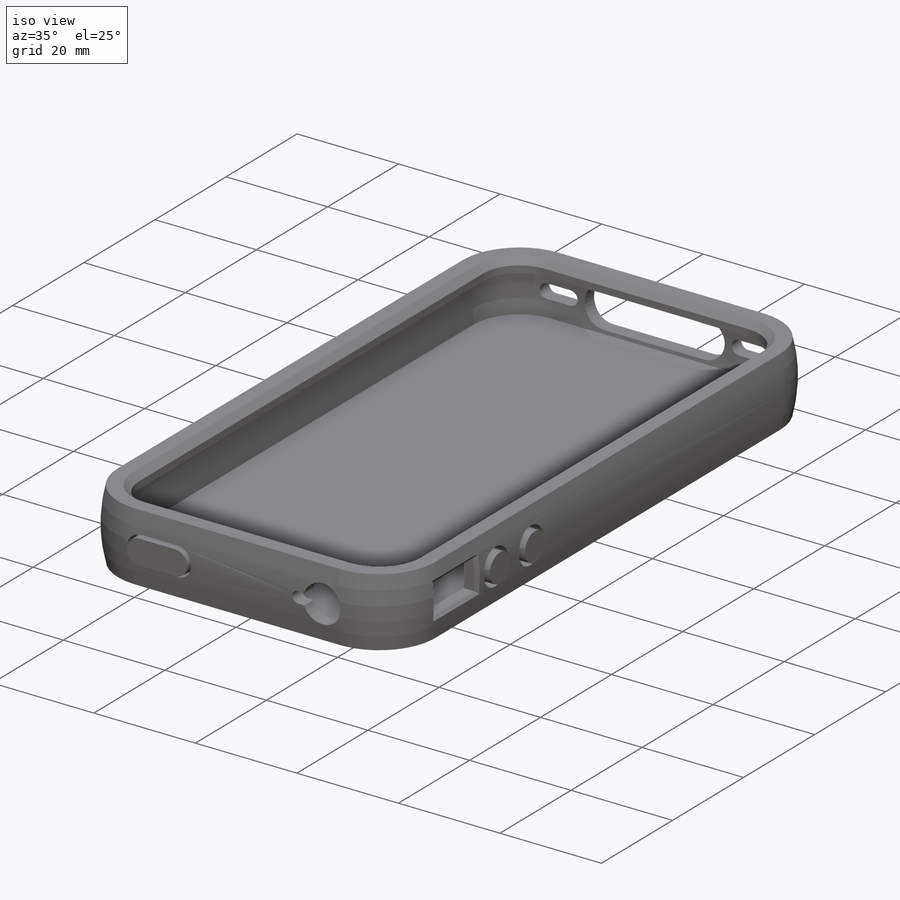
[diagram: iso view]
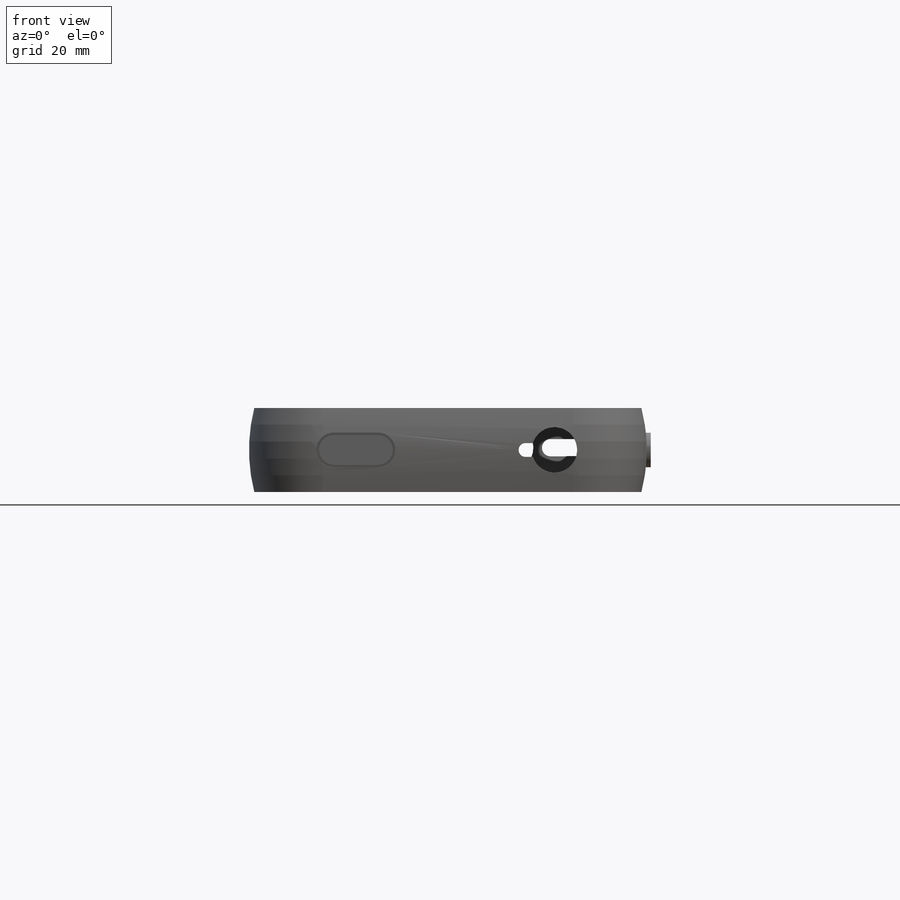
[diagram: front view]
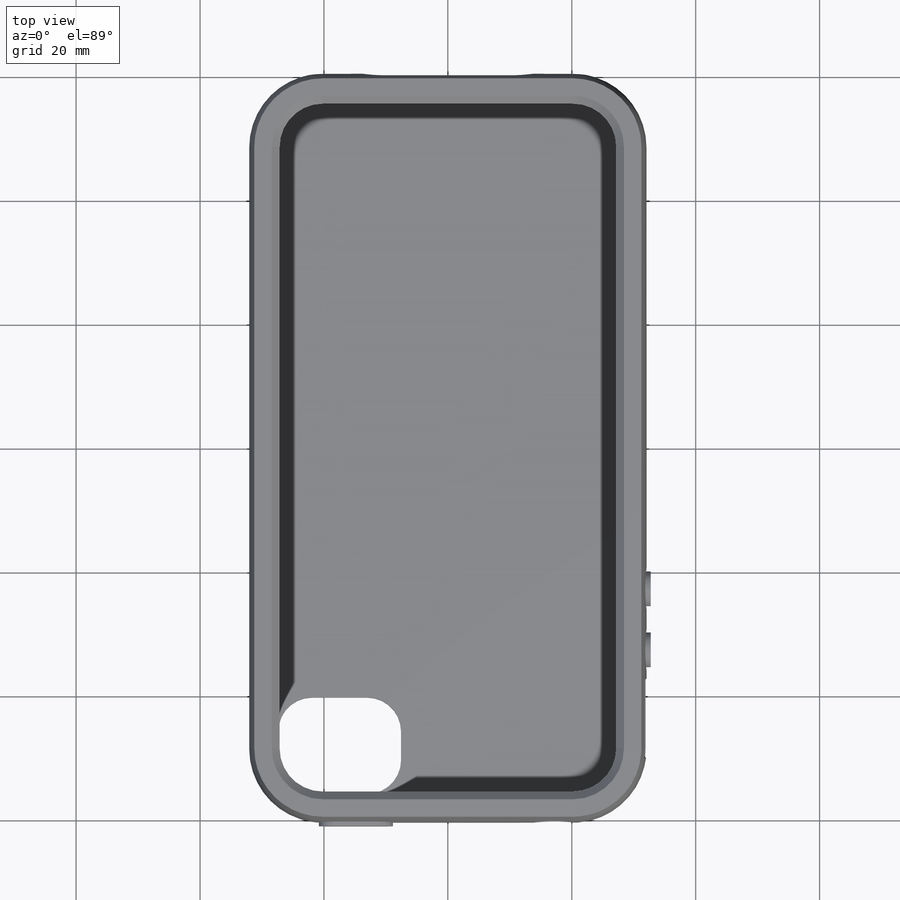
[diagram: top view]
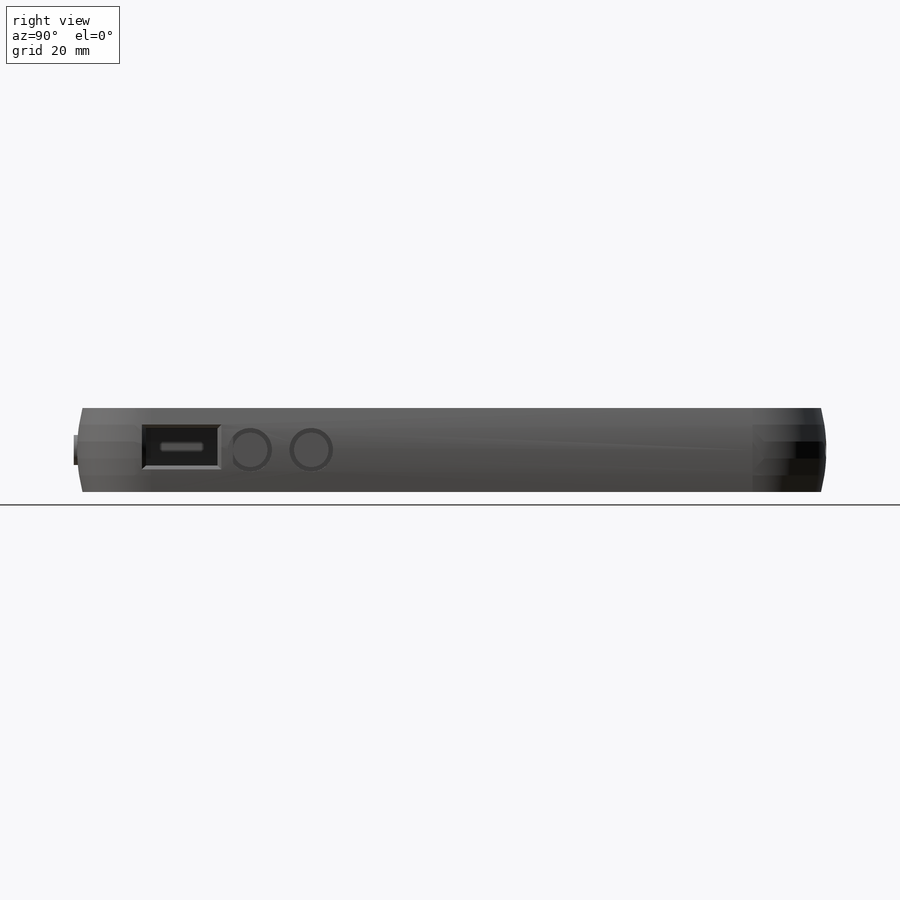
[diagram: right view]
SOLIDWORKS PART (.sldprt)
format: sldprt  version: not decoded by parser v0  size: 608,256 bytes
history: native  units: mm
features: sketch x15, cut_extrude x8, extrude x5, plane x5, chamfer x2, material x1, sweep x1, shell x1 (+12 scaffold rows collapsed)
feature tree (50):
  scaffold x12  (default folders/planes/origin — collapsed)
  material  "Material <not specified>"
  sketch  "Sketch2"  dims[D3=~11.90625mm D1=64.1858mm D2=120.904mm D4=5.0546mm]
  sketch  "Sketch3"  dims[c1.D2=~27.350303mm c1.D1=13.5382mm c2.D2=31.242mm c2.D3=6.7691mm c2.D4=~9.257136mm]
  sweep  "Sweep3"
  sketch  "Sketch4"
  extrude  "Boss-Extrude1"  [1 undecoded]
  shell  "Shell1"  Thickness=2.6416mm
  sketch  "Sketch5"  dims[D1=0.0mm D2=4.0894mm]
  cut_extrude  "Cut-Extrude1"  Depth=5.08mm
  chamfer  "Chamfer1"  Distance=1.27mm Angle=45deg
  sketch  "Sketch6"  dims[D5=5.461mm D1=4.7244mm D2=4.7244mm D3=19.812mm D4=15.5702mm]
  cut_extrude  "Cut-Extrude2"  [1 undecoded]
  sketch  "Sketch7"  dims[D1=11.0998mm D2=3.2766mm D3=4.2672mm D4=11.5316mm]
  cut_extrude  "Cut-Extrude3"  [1 undecoded]
  chamfer  "Chamfer2"  Distance=0.635mm Angle=45deg
  plane  "Plane1"
  sketch  "Sketch8"  dims[D3=7.0612mm D1=83.1342mm D2=9.8552mm]
  cut_extrude  "Cut-Extrude4"  [1 undecoded]
  sketch  "Sketch9"  dims[D1=3.3274mm D2=2.5908mm D3=27.5844mm]
  cut_extrude  "Cut-Extrude5"  Depth=27.94mm
  sketch  "Sketch10"  dims[D1=5.207mm D2=5.207mm D3=7.2898mm D4=7.2898mm D5=2.794mm D6=2.794mm]
  cut_extrude  "Cut-Extrude6"  Depth=27.94mm
  plane  "Plane2"
  plane  "Plane3"
  sketch  "Sketch12"  dims[D3=5.588mm D1=10.8966mm D2=12.7mm]
  cut_extrude  "Cut-Extrude7"  Depth=27.94mm
  sketch  "Sketch13"  dims[D2=7.3152mm D4=2.2352mm D1=49.3014mm D3=4.6736mm]
  cut_extrude  "Cut-Extrude8"  Depth=27.94mm
  plane  "Plane4"
  sketch  "Sketch14"
  extrude  "Boss-Extrude2"  Depth=0.381mm
  sketch  "Sketch15"  dims[D1=0.0mm D2=0.381mm]
  extrude  "Boss-Extrude3"  Depth=2.921mm
  plane  "Plane5"
  sketch  "Sketch16"
  extrude  "Boss-Extrude4"  Depth=0.254mm
  sketch  "Sketch17"  dims[D1=5.588mm]
  extrude  "Boss-Extrude5"  Depth=3.175mm
decode coverage: 24 of 32 modeling features carry decoded parameters
note: ~ marks probable driven/reference dimensions
note: 4 parameter values undecoded
summary: no parameter record found for 4 features
note: suppression state not decoded; provenance and decode notes live in map.json
